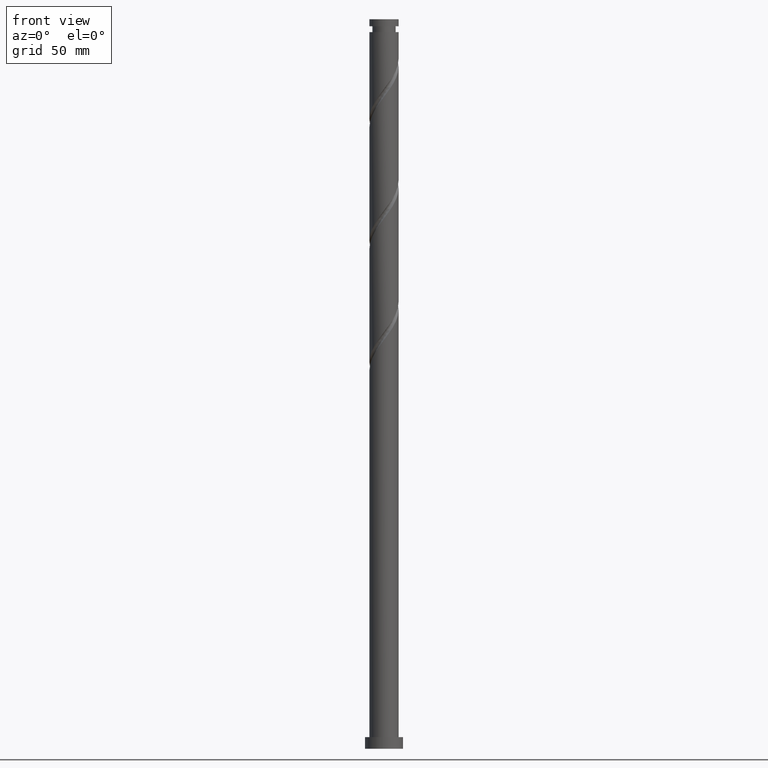
[diagram: clean part render]
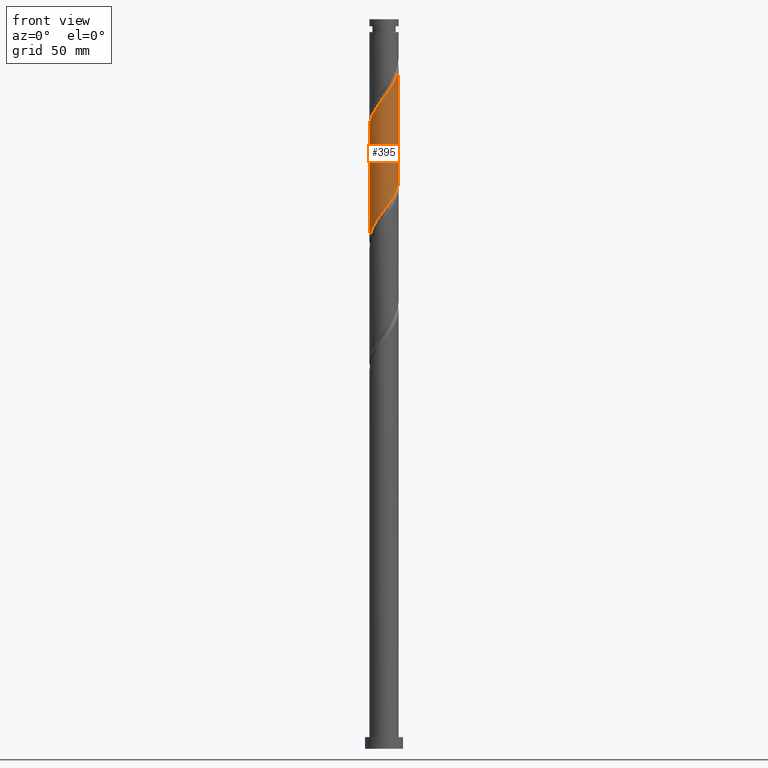
[diagram: same view with one face highlighted and labeled with its STEP entity id]
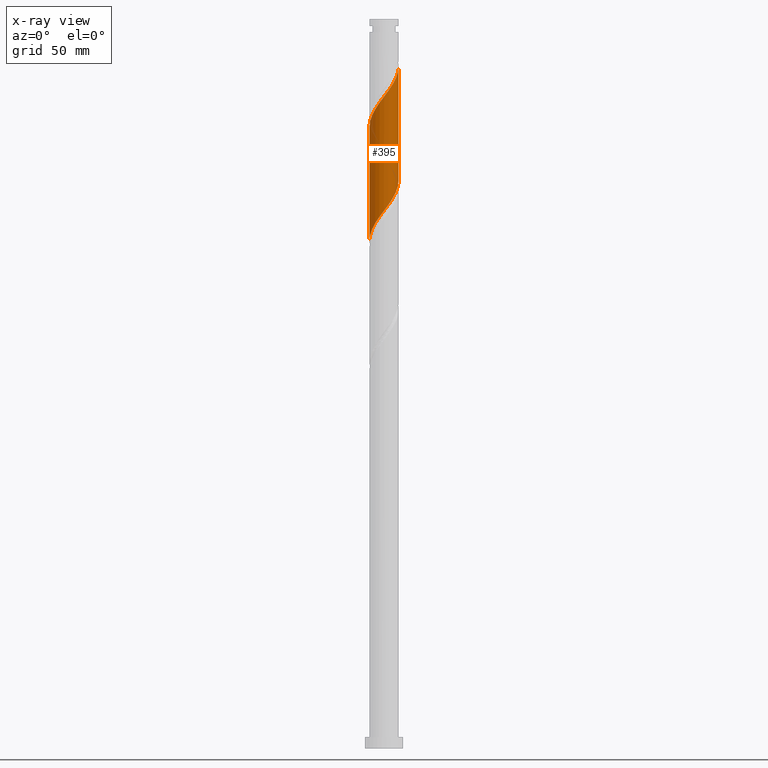
[diagram: x-ray of the same camera — body ghosted, the highlighted face saturated]
A machine part, front view. The second image highlights one B-rep face of the part: STEP entity #395.
The next image is the same camera in x-ray: the body ghosted, the highlighted face saturated — about 0% of this face is hidden behind the body in this view.
In plain terms, the highlighted cylindrical surface (edge-blend (fillet) strip) has radius 10 mm, axis along (-0, -0, -1).
Its self-contained STEP definition (entity closure, byte-faithful):
#35 = CARTESIAN_POINT ( 'NONE',  ( 8.292489003426394945, -5.588794693675227521, 381.8098413428222102 ) ) ;
#78 = CARTESIAN_POINT ( 'NONE',  ( -8.292489003426412708, -5.588794693675228409, 433.8931746761554678 ) ) ;
#107 = CARTESIAN_POINT ( 'NONE',  ( 9.627253911664572783, -2.878547858533178516, 463.8410913428222102 ) ) ;
#122 = ORIENTED_EDGE ( 'NONE', *, *, #1772, .F. ) ;
#148 = LINE ( 'NONE', #1117, #578 ) ;
#156 = CARTESIAN_POINT ( 'NONE',  ( 9.999999999999998224, 8.834553925947433027E-15, 389.6750383208189987 ) ) ;
#180 = CARTESIAN_POINT ( 'NONE',  ( -10.00000000000001599, -2.997038547030246099E-15, 426.0279776981586224 ) ) ;
#182 = CARTESIAN_POINT ( 'NONE',  ( 9.995995418006760502, -1.024759121313043142, 388.3202580094888390 ) ) ;
#193 = CARTESIAN_POINT ( 'NONE',  ( 7.042831395995134969, -7.099191920745997031, 379.2056746761555246 ) ) ;
#201 = CARTESIAN_POINT ( 'NONE',  ( 2.878547858533169634, -9.627253911664558572, 372.6952580094888958 ) ) ;
#219 = CARTESIAN_POINT ( 'NONE',  ( 10.00000000000001599, -5.218723838112370066E-16, 467.6946443648253080 ) ) ;
#247 = CARTESIAN_POINT ( 'NONE',  ( -9.999999999999996447, -7.861634696127906080E-15, 348.0083716541523131 ) ) ;
#255 = CARTESIAN_POINT ( 'NONE',  ( -10.00000000000001599, -2.997038547030246099E-15, 426.0279776981586224 ) ) ;
#315 = CARTESIAN_POINT ( 'NONE',  ( 1.911800580680536488, -9.815549833794827705, 371.3931746761555814 ) ) ;
#325 = CARTESIAN_POINT ( 'NONE',  ( 9.604004581993244472, -2.955190627113456259, 385.7160913428222102 ) ) ;
#350 = CARTESIAN_POINT ( 'NONE',  ( 7.742040770971249763, -6.405533572946541909, 380.5077580094889527 ) ) ;
#389 = CARTESIAN_POINT ( 'NONE',  ( 7.792850268545465475, -6.343622021019034385, 458.6327580094890095 ) ) ;
#395 = ADVANCED_FACE ( 'NONE', ( #1234 ), #1373, .T. ) ;
#397 = CARTESIAN_POINT ( 'NONE',  ( -7.792850268545455705, -6.343622021019020174, 357.0702580094888958 ) ) ;
#452 = VERTEX_POINT ( 'NONE', #180 ) ;
#478 = CARTESIAN_POINT ( 'NONE',  ( -4.772055814403904250, -8.842937235881546343, 362.2785913428222102 ) ) ;
#493 = CARTESIAN_POINT ( 'NONE',  ( -9.999999999999996447, -7.861634696127906080E-15, 348.0083716541523131 ) ) ;
#524 = CARTESIAN_POINT ( 'NONE',  ( -8.336771183575200084, -5.522521727681131587, 355.7681746761555246 ) ) ;
#559 = CARTESIAN_POINT ( 'NONE',  ( 0.000000000000000000, 0.000000000000000000, 500.0000000000000000 ) ) ;
#573 = CARTESIAN_POINT ( 'NONE',  ( -7.099191920745997031, -7.042831395995135857, 358.3723413428221534 ) ) ;
#574 = CARTESIAN_POINT ( 'NONE',  ( -3.789984646438214089, -9.253973005134763952, 441.7056746761555814 ) ) ;
#578 = VECTOR ( 'NONE', #1479, 1000.000000000000000 ) ;
#594 = CARTESIAN_POINT ( 'NONE',  ( -5.588794693675222192, -8.292489003426396721, 360.9765080094889527 ) ) ;
#695 = CARTESIAN_POINT ( 'NONE',  ( -6.405533572946541021, -7.742040770971249763, 359.6744246761556383 ) ) ;
#723 = CARTESIAN_POINT ( 'NONE',  ( -7.742040770971267527, -6.405533572946550791, 435.1952580094889527 ) ) ;
#733 = CARTESIAN_POINT ( 'NONE',  ( 9.253973005134763952, -3.789984646438214089, 462.5390080094889527 ) ) ;
#741 = CARTESIAN_POINT ( 'NONE',  ( -0.9450533028279082259, -10.00384575592510750, 445.6119246761555246 ) ) ;
#750 = CARTESIAN_POINT ( 'NONE',  ( -6.343622021019033497, -7.792850268545465475, 437.7994246761555246 ) ) ;
#802 = CARTESIAN_POINT ( 'NONE',  ( -1.024759121313038257, -9.995995418006760502, 367.4869246761555814 ) ) ;
#870 = CARTESIAN_POINT ( 'NONE',  ( -8.842937235881560554, -4.772055814403908691, 432.5910913428220965 ) ) ;
#887 = CARTESIAN_POINT ( 'NONE',  ( -9.604004581993260459, -2.955190627113461588, 429.9869246761555246 ) ) ;
#894 = CARTESIAN_POINT ( 'NONE',  ( -9.815549833794827705, -1.911800580680537154, 350.5598413428222671 ) ) ;
#895 = CARTESIAN_POINT ( 'NONE',  ( -9.223470908937407842, -3.863623220758684251, 431.2890080094889527 ) ) ;
#916 = ORIENTED_EDGE ( 'NONE', *, *, #1559, .F. ) ;
#955 =( BOUNDED_CURVE ( )  B_SPLINE_CURVE ( 2, ( #156, #1115, #1815, #182, #1981, #325, #1969, #1762, #35, #350, #193, #1163, #1002, #1295, #1661, #201, #315, #958, #1615, #802, #1453, #2103, #1944, #478, #594, #695, #573, #397, #524, #1859, #1879, #2052, #894, #1173, #247 ),
 .UNSPECIFIED., .F., .T. ) 
 B_SPLINE_CURVE_WITH_KNOTS ( ( 3, 2, 2, 2, 2, 2, 2, 2, 2, 2, 2, 2, 2, 2, 2, 2, 2, 3 ),
 ( 0.5545286902180871502, 0.5546875000000000000, 0.5625000000000000000, 0.5703125000000000000, 0.5781250000000000000, 0.5859375000000000000, 0.5937500000000000000, 0.6015625000000000000, 0.6093750000000000000, 0.6171875000000000000, 0.6250000000000000000, 0.6328125000000000000, 0.6406250000000000000, 0.6484375000000000000, 0.6562500000000000000, 0.6640625000000000000, 0.6718750000000000000, 0.6795286902180870392 ),
 .UNSPECIFIED. ) 
 CURVE ( )  GEOMETRIC_REPRESENTATION_ITEM ( )  RATIONAL_B_SPLINE_CURVE ( ( 0.9089165573359302419, 0.9090019243628350010, 0.9090909090909268242, 0.9047133878838330423, 0.9090909090909268242, 0.9047133878838330423, 0.9090909090909268242, 0.9047133878838330423, 0.9090909090909268242, 0.9047133878838330423, 0.9090909090909268242, 0.9047133878838330423, 0.9090909090909268242, 0.9047133878838330423, 0.9090909090909268242, 0.9047133878838330423, 0.9090909090909268242, 0.9047133878838330423, 0.9090909090909268242, 0.9047133878838330423, 0.9090909090909268242, 0.9047133878838330423, 0.9090909090909268242, 0.9047133878838330423, 0.9090909090909268242, 0.9047133878838330423, 0.9090909090909268242, 0.9047133878838330423, 0.9090909090909268242, 0.9047133878838330423, 0.9090909090909268242, 0.9047133878838330423, 0.9090909090909268242, 0.9048023726119248655, 0.9089165573359301309 ) ) 
 REPRESENTATION_ITEM ( '' )  );
#958 = CARTESIAN_POINT ( 'NONE',  ( 0.9450533028279020087, -10.00384575592509329, 370.0910913428222671 ) ) ;
#974 = LINE ( 'NONE', #1298, #1563 ) ;
#979 = CARTESIAN_POINT ( 'NONE',  ( 9.999999999999998224, 8.834553925947433027E-15, 389.6750383208189987 ) ) ;
#1002 = CARTESIAN_POINT ( 'NONE',  ( 5.522521727681131587, -8.336771183575201860, 376.6015080094888390 ) ) ;
#1027 = CARTESIAN_POINT ( 'NONE',  ( -1.911800580680543815, -9.815549833794840140, 444.3098413428223239 ) ) ;
#1035 = EDGE_LOOP ( 'NONE', ( #916, #1332, #1596, #122 ) ) ;
#1038 = CARTESIAN_POINT ( 'NONE',  ( -9.999920586965941993, -0.03985290924256424533, 426.0806746761554678 ) ) ;
#1048 = CARTESIAN_POINT ( 'NONE',  ( -7.042831395995150956, -7.099191920746005025, 436.4973413428222102 ) ) ;
#1077 = VERTEX_POINT ( 'NONE', #1102 ) ;
#1102 = CARTESIAN_POINT ( 'NONE',  ( 10.00000000000001776, -5.218723838112370066E-16, 467.6946443648253080 ) ) ;
#1115 = CARTESIAN_POINT ( 'NONE',  ( 10.00000000000000000, -0.01992653374260383234, 389.6486847663017556 ) ) ;
#1117 = CARTESIAN_POINT ( 'NONE',  ( 10.00000000000000178, 1.224646799147353454E-15, 500.0000000000000000 ) ) ;
#1163 = CARTESIAN_POINT ( 'NONE',  ( 6.343622021019015733, -7.792850268545460146, 377.9035913428221534 ) ) ;
#1173 = CARTESIAN_POINT ( 'NONE',  ( -10.00000000000000000, -0.9647981492898323186, 349.2843517595683807 ) ) ;
#1185 = CARTESIAN_POINT ( 'NONE',  ( -9.800000000000013145, -1.989974874213249256, 428.6848413428221534 ) ) ;
#1195 = CARTESIAN_POINT ( 'NONE',  ( -10.00000000000001776, -0.01992653374262967625, 426.0543312526758655 ) ) ;
#1210 = DIRECTION ( 'NONE',  ( -0.000000000000000000, -0.000000000000000000, -1.000000000000000000 ) ) ;
#1223 = CARTESIAN_POINT ( 'NONE',  ( 1.989974874213248590, -9.800000000000013145, 449.5181746761554678 ) ) ;
#1234 = FACE_OUTER_BOUND ( 'NONE', #1035, .T. ) ;
#1295 = CARTESIAN_POINT ( 'NONE',  ( 4.701421434343240335, -8.880692098604948015, 375.2994246761555814 ) ) ;
#1298 = CARTESIAN_POINT ( 'NONE',  ( -10.00000000000000178, 0.000000000000000000, 500.0000000000000000 ) ) ;
#1332 = ORIENTED_EDGE ( 'NONE', *, *, #1497, .F. ) ;
#1356 = CARTESIAN_POINT ( 'NONE',  ( 6.405533572946549903, -7.742040770971267527, 456.0285913428223239 ) ) ;
#1369 = CARTESIAN_POINT ( 'NONE',  ( 1.024759121313035815, -9.995995418006772937, 448.2160913428222102 ) ) ;
#1373 = CYLINDRICAL_SURFACE ( 'NONE', #1834, 10.00000000000000178 ) ;
#1377 = CARTESIAN_POINT ( 'NONE',  ( -4.701421434343251882, -8.880692098604958673, 440.4035913428222102 ) ) ;
#1386 = CARTESIAN_POINT ( 'NONE',  ( 8.336771183575214295, -5.522521727681144021, 459.9348413428222671 ) ) ;
#1395 = CARTESIAN_POINT ( 'NONE',  ( 10.00000000000002487, -0.9647981492897830247, 466.4186642594093541 ) ) ;
#1453 = CARTESIAN_POINT ( 'NONE',  ( -1.989974874213249034, -9.800000000000002487, 366.1848413428222102 ) ) ;
#1466 = VERTEX_POINT ( 'NONE', #979 ) ;
#1479 = DIRECTION ( 'NONE',  ( -0.000000000000000000, -0.000000000000000000, -1.000000000000000000 ) ) ;
#1485 = DIRECTION ( 'NONE',  ( -1.000000000000000000, 0.000000000000000000, 0.000000000000000000 ) ) ;
#1497 = EDGE_CURVE ( 'NONE', #452, #1077, #2061, .T. ) ;
#1512 = CARTESIAN_POINT ( 'NONE',  ( 7.099191920746005025, -7.042831395995150956, 457.3306746761555246 ) ) ;
#1519 = CARTESIAN_POINT ( 'NONE',  ( -2.878547858533178072, -9.627253911664572783, 443.0077580094890095 ) ) ;
#1541 = CARTESIAN_POINT ( 'NONE',  ( 4.772055814403907803, -8.842937235881560554, 453.4244246761556383 ) ) ;
#1554 = CARTESIAN_POINT ( 'NONE',  ( 8.880692098604958673, -4.701421434343256323, 461.2369246761555246 ) ) ;
#1559 = EDGE_CURVE ( 'NONE', #1077, #1466, #148, .T. ) ;
#1563 = VECTOR ( 'NONE', #1924, 1000.000000000000000 ) ;
#1579 = VERTEX_POINT ( 'NONE', #493 ) ;
#1596 = ORIENTED_EDGE ( 'NONE', *, *, #1688, .T. ) ;
#1615 = CARTESIAN_POINT ( 'NONE',  ( -0.03985290924256556372, -9.999920586965924230, 368.7890080094888958 ) ) ;
#1661 = CARTESIAN_POINT ( 'NONE',  ( 3.789984646438204319, -9.253973005134753294, 373.9973413428221534 ) ) ;
#1674 = CARTESIAN_POINT ( 'NONE',  ( 2.955190627113460256, -9.604004581993260459, 450.8202580094888958 ) ) ;
#1688 = EDGE_CURVE ( 'NONE', #452, #1579, #974, .T. ) ;
#1693 = CARTESIAN_POINT ( 'NONE',  ( -9.995995418006772937, -1.024759121313036037, 427.3827580094888958 ) ) ;
#1762 = CARTESIAN_POINT ( 'NONE',  ( 8.842937235881546343, -4.772055814403904250, 383.1119246761555814 ) ) ;
#1772 = EDGE_CURVE ( 'NONE', #1466, #1579, #955, .T. ) ;
#1815 = CARTESIAN_POINT ( 'NONE',  ( 9.999920586965924230, -0.03985290924256618128, 389.6223413428221534 ) ) ;
#1831 = CARTESIAN_POINT ( 'NONE',  ( 0.03985290924256169875, -9.999920586965943770, 446.9140080094889527 ) ) ;
#1834 = AXIS2_PLACEMENT_3D ( 'NONE', #559, #1210, #1485 ) ;
#1840 = CARTESIAN_POINT ( 'NONE',  ( 5.588794693675228409, -8.292489003426412708, 454.7265080094888390 ) ) ;
#1859 = CARTESIAN_POINT ( 'NONE',  ( -8.880692098604948015, -4.701421434343240335, 354.4660913428222102 ) ) ;
#1879 = CARTESIAN_POINT ( 'NONE',  ( -9.253973005134753294, -3.789984646438204319, 353.1640080094889527 ) ) ;
#1924 = DIRECTION ( 'NONE',  ( -0.000000000000000000, -0.000000000000000000, -1.000000000000000000 ) ) ;
#1944 = CARTESIAN_POINT ( 'NONE',  ( -3.863623220758683363, -9.223470908937388302, 363.5806746761555246 ) ) ;
#1969 = CARTESIAN_POINT ( 'NONE',  ( 9.223470908937388302, -3.863623220758683807, 384.4140080094888390 ) ) ;
#1981 = CARTESIAN_POINT ( 'NONE',  ( 9.800000000000002487, -1.989974874213249700, 387.0181746761555814 ) ) ;
#2015 = CARTESIAN_POINT ( 'NONE',  ( 3.863623220758686028, -9.223470908937407842, 452.1223413428222102 ) ) ;
#2026 = CARTESIAN_POINT ( 'NONE',  ( 9.815549833794836587, -1.911800580680548256, 465.1431746761555246 ) ) ;
#2045 = CARTESIAN_POINT ( 'NONE',  ( -5.522521727681143133, -8.336771183575214295, 439.1015080094888390 ) ) ;
#2052 = CARTESIAN_POINT ( 'NONE',  ( -9.627253911664558572, -2.878547858533170078, 351.8619246761555246 ) ) ;
#2061 =( BOUNDED_CURVE ( )  B_SPLINE_CURVE ( 2, ( #255, #1195, #1038, #1693, #1185, #887, #895, #870, #78, #723, #1048, #750, #2045, #1377, #574, #1519, #1027, #741, #1831, #1369, #1223, #1674, #2015, #1541, #1840, #1356, #1512, #389, #1386, #1554, #733, #107, #2026, #1395, #219 ),
 .UNSPECIFIED., .F., .T. ) 
 B_SPLINE_CURVE_WITH_KNOTS ( ( 3, 2, 2, 2, 2, 2, 2, 2, 2, 2, 2, 2, 2, 2, 2, 2, 2, 3 ),
 ( 0.5545286902180873723, 0.5546875000000000000, 0.5625000000000000000, 0.5703125000000000000, 0.5781250000000000000, 0.5859375000000000000, 0.5937500000000000000, 0.6015625000000000000, 0.6093750000000000000, 0.6171875000000000000, 0.6250000000000000000, 0.6328125000000000000, 0.6406250000000000000, 0.6484375000000000000, 0.6562500000000000000, 0.6640625000000000000, 0.6718750000000000000, 0.6795286902180874833 ),
 .UNSPECIFIED. ) 
 CURVE ( )  GEOMETRIC_REPRESENTATION_ITEM ( )  RATIONAL_B_SPLINE_CURVE ( ( 0.9089165573359370143, 0.9090019243628417733, 0.9090909090909334855, 0.9047133878838395926, 0.9090909090909334855, 0.9047133878838395926, 0.9090909090909334855, 0.9047133878838395926, 0.9090909090909334855, 0.9047133878838395926, 0.9090909090909334855, 0.9047133878838395926, 0.9090909090909334855, 0.9047133878838395926, 0.9090909090909334855, 0.9047133878838395926, 0.9090909090909334855, 0.9047133878838395926, 0.9090909090909334855, 0.9047133878838395926, 0.9090909090909334855, 0.9047133878838395926, 0.9090909090909334855, 0.9047133878838395926, 0.9090909090909334855, 0.9047133878838395926, 0.9090909090909334855, 0.9047133878838395926, 0.9090909090909334855, 0.9047133878838395926, 0.9090909090909334855, 0.9047133878838395926, 0.9090909090909334855, 0.9048023726119311938, 0.9089165573359372363 ) ) 
 REPRESENTATION_ITEM ( '' )  );
#2103 = CARTESIAN_POINT ( 'NONE',  ( -2.955190627113459367, -9.604004581993240919, 364.8827580094887821 ) ) ;